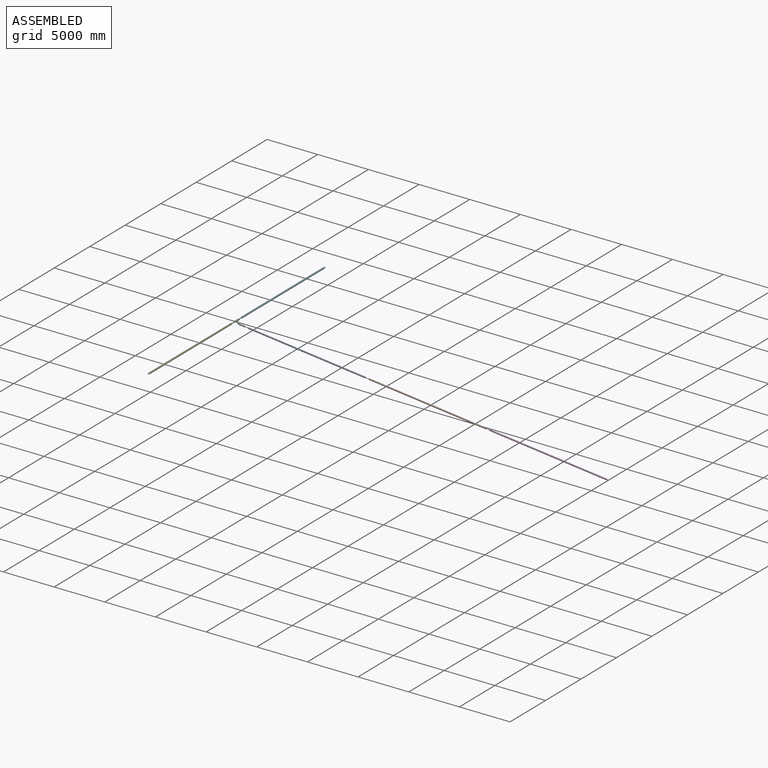
[diagram: assembled view]
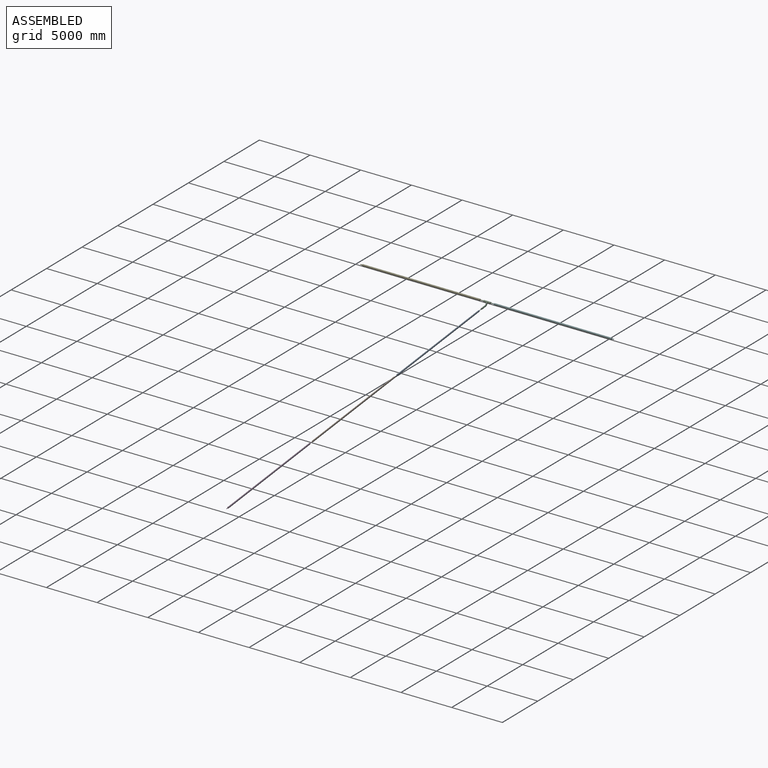
[diagram: assembled view, second angle]
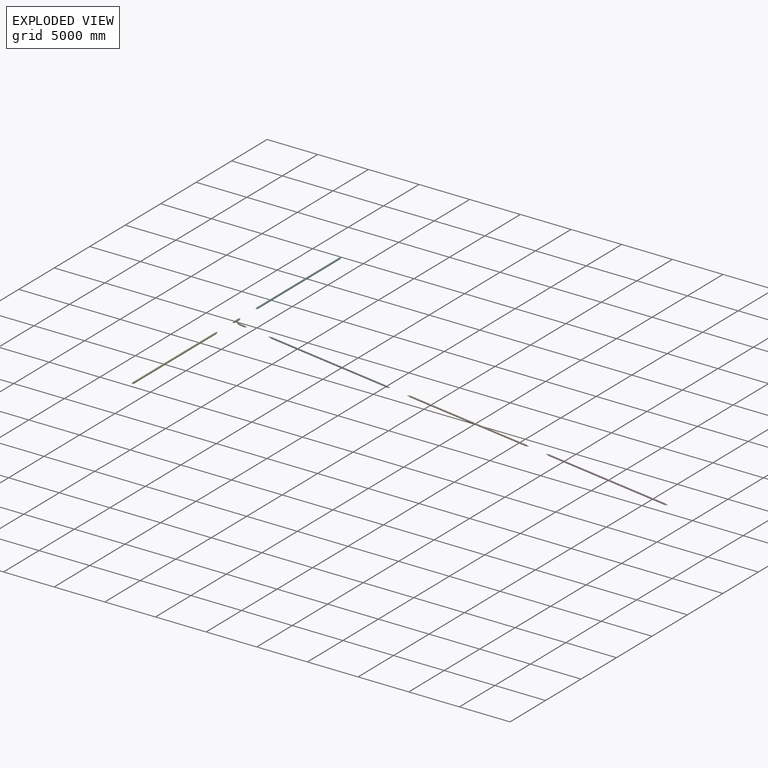
[diagram: exploded view]
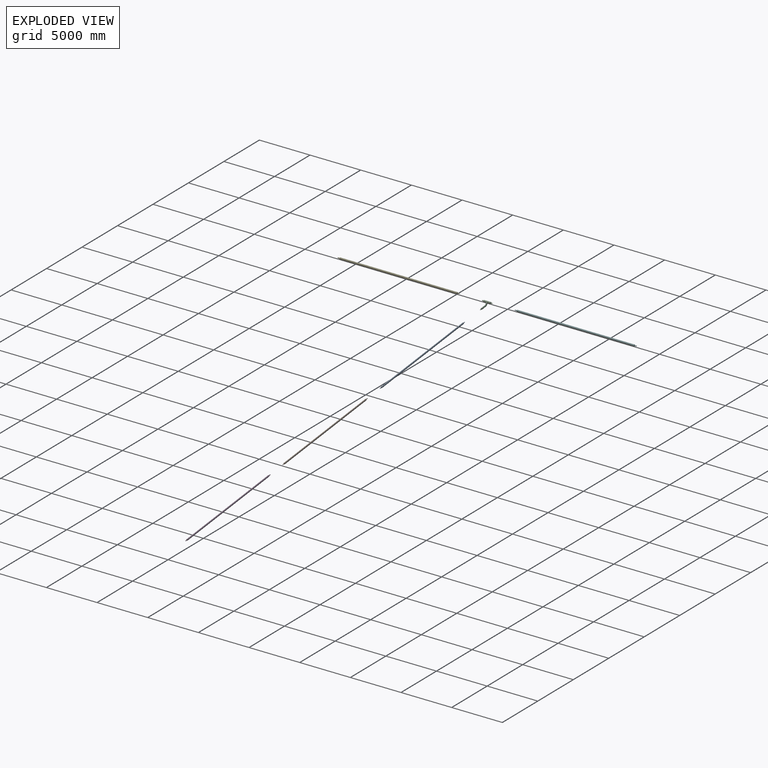
[diagram: exploded view, second angle]
ASSEMBLY  parts=6 mates=5
PART A: 8 faces, bbox 140x12000x140 mm
  f0: cylinder r=30.15mm len=200mm, axis (0,1,0), area 37887.6mm2, adj f4,f6
  f1: cylinder r=27.25mm len=12000mm, axis (0,1,0), area 2054601.6mm2, adj f3,f4
  f2: cylinder r=30.15mm len=200mm, axis (0,1,0), area 37887.6mm2, adj f3,f5
  f3: plane 60.3x60.3mm, normal (0,-1,0), area 522.9mm2, adj f1,f2
  f4: plane 60.3x60.3mm, normal (0,1,0), area 522.9mm2, adj f0,f1
  f5: plane 140x140mm, normal (0,-1,0), area 12538mm2, adj f2,f7
  f6: plane 140x140mm, normal (0,1,0), area 12538mm2, adj f0,f7
  f7: cylinder r=70mm len=11600mm, axis (0,1,0), area 5101946.5mm2, adj f5,f6
PART B: same geometry as A
PART C: 23 faces, bbox 1080x1000x393.2 mm
  f0: cylinder r=30.15mm len=150mm, axis (-1,0,0), area 28415.7mm2, adj f1,f6
  f1: plane 60.3x60.3mm, normal (1,0,0), area 522.9mm2, adj f0,f5
  f2: cylinder r=80mm len=54.5mm, axis (0,1,0), area 2370.9mm2, adj f3
  f3: cylinder r=27.25mm len=143.54mm, axis (-0.71,0,-0.71), area 25010.8mm2, adj f2,f4
  f4: torus R=211.05mm, axis (0,-1,0), area 28380.6mm2, adj f3,f5
  f5: cylinder r=27.25mm len=692.58mm, axis (-1,0,0), area 118581.4mm2, adj f1,f4
  f6: plane 140x140mm, normal (1,0,0), area 12538mm2, adj f0,f9
  f7: torus R=211.05mm, axis (0,-1,0), area 72904.3mm2, adj f8,f9
  f8: cylinder r=70mm len=229.8mm, axis (-0.71,0,-0.71), area 71500mm2, adj f7,f20
  f9: cylinder r=70mm len=542.58mm, axis (-1,0,0), area 238639.2mm2, adj f6,f7
  f10: cylinder r=35.15mm len=54.5mm, axis (0,1,0), area 2567.1mm2, adj f12
  f11: cylinder r=38.05mm len=150mm, axis (0,1,0), area 35861.3mm2, adj f13,f18
  f12: cylinder r=27.25mm len=63.39mm, axis (-0.71,0,-0.71), area 4972.6mm2, adj f10,f16
  f13: plane 76.1x76.1mm, normal (0,1,0), area 666.9mm2, adj f11,f15
  f14: plane 76.1x76.1mm, normal (0,-1,0), area 666.9mm2, adj f15,f17
  f15: cylinder r=35.15mm len=1000mm, axis (0,1,0), area 206420.5mm2, adj f13,f14,f16,f21,f22
  f16: plane 140x49.71mm, normal (-0.71,0,-0.71), area 7078.3mm2, adj f12,f15,f21,f22
  f17: cylinder r=38.05mm len=150mm, axis (0,1,0), area 35861.3mm2, adj f14,f19
  f18: plane 160x160mm, normal (0,1,0), area 15557.8mm2, adj f11,f20
  f19: plane 160x160mm, normal (0,-1,0), area 15557.8mm2, adj f17,f20
  f20: cylinder r=80mm len=700mm, axis (0,1,0), area 334250.4mm2, adj f8,f18,f19
  f21: cylinder r=70mm len=74.57mm, axis (-0.71,0,-0.71), area 2008.3mm2, adj f15,f16
  f22: cylinder r=70mm len=74.57mm, axis (-0.71,0,-0.71), area 2008.3mm2, adj f15,f16
PART D: same geometry as A
PART E: 8 faces, bbox 160x12000x160 mm
  f0: cylinder r=38.05mm len=200mm, axis (0,1,0), area 47815mm2, adj f4,f6
  f1: cylinder r=35.15mm len=12000mm, axis (0,1,0), area 2650247.6mm2, adj f3,f4
  f2: cylinder r=38.05mm len=200mm, axis (0,1,0), area 47815mm2, adj f3,f5
  f3: plane 76.1x76.1mm, normal (0,-1,0), area 666.9mm2, adj f1,f2
  f4: plane 76.1x76.1mm, normal (0,1,0), area 666.9mm2, adj f0,f1
  f5: plane 160x160mm, normal (0,-1,0), area 15557.8mm2, adj f2,f7
  f6: plane 160x160mm, normal (0,1,0), area 15557.8mm2, adj f0,f7
  f7: cylinder r=80mm len=11600mm, axis (0,1,0), area 5830796mm2, adj f5,f6
PART F: same geometry as E
PLACE A rot(axis=(0.53,0.6,-0.6),123.8deg) t=(6929.56,0,-1014.69)mm
PLACE B rot(axis=(-0.63,-0.56,-0.54),117.7deg) t=(18851.7,0,-2379.47)mm
PLACE C rot(axis=(1,0,-0.06),180deg) t=(0,0,0)mm
PLACE D rot(axis=(-0.08,0.04,-1),90.1deg) t=(30773.84,0,-3744.25)mm
PLACE E rot(axis=(-0.17,0,-0.99),180deg) t=(0,-6500,0)mm
PLACE F rot(axis=(0,-1,0),156.7deg) t=(0,6500,0)mm
MATE revolute B.f0 <-> A.f0  axis (-0.99,0,0.11) through (12890.63,0,-1697.08)mm
MATE revolute A.f0 <-> C.f0  axis (-0.99,0,0.11) through (968.49,0,-332.3)mm
MATE revolute D.f0 <-> B.f0  axis (-0.99,0,0.11) through (24812.77,0,-3061.86)mm
MATE revolute E.f0 <-> C.f11  axis (0,1,0) through (0,-500,0)mm
MATE revolute F.f0 <-> C.f11  axis (0,-1,0) through (0,500,0)mm
